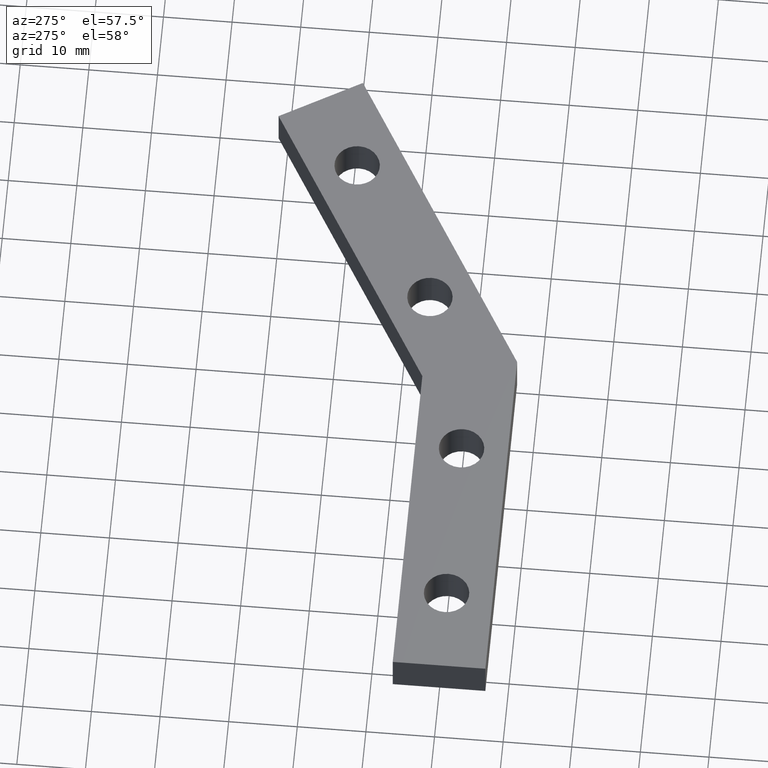
[diagram: clean part render]
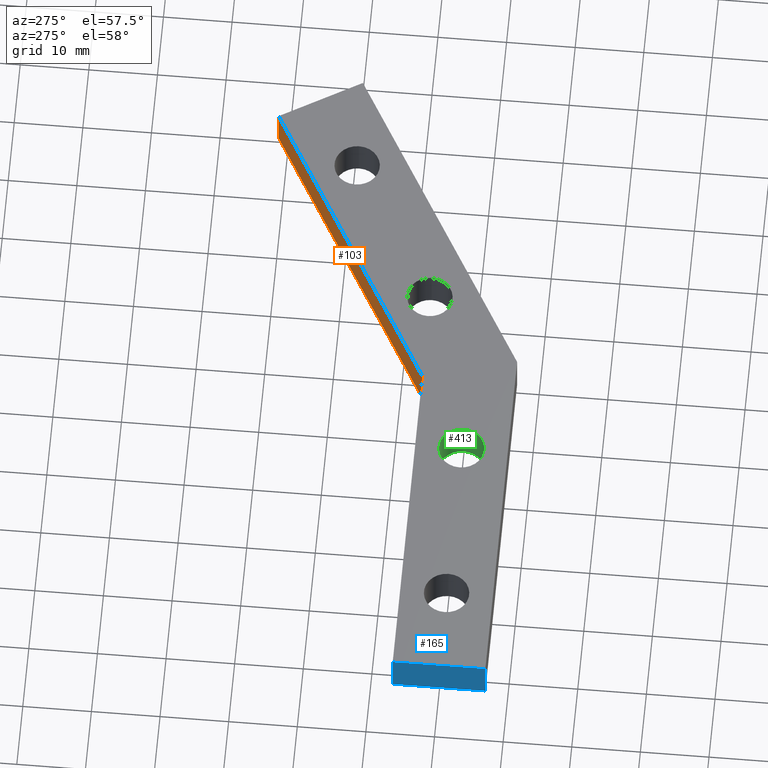
[diagram: same view with three faces highlighted in distinct colors, each labeled with its STEP entity id]
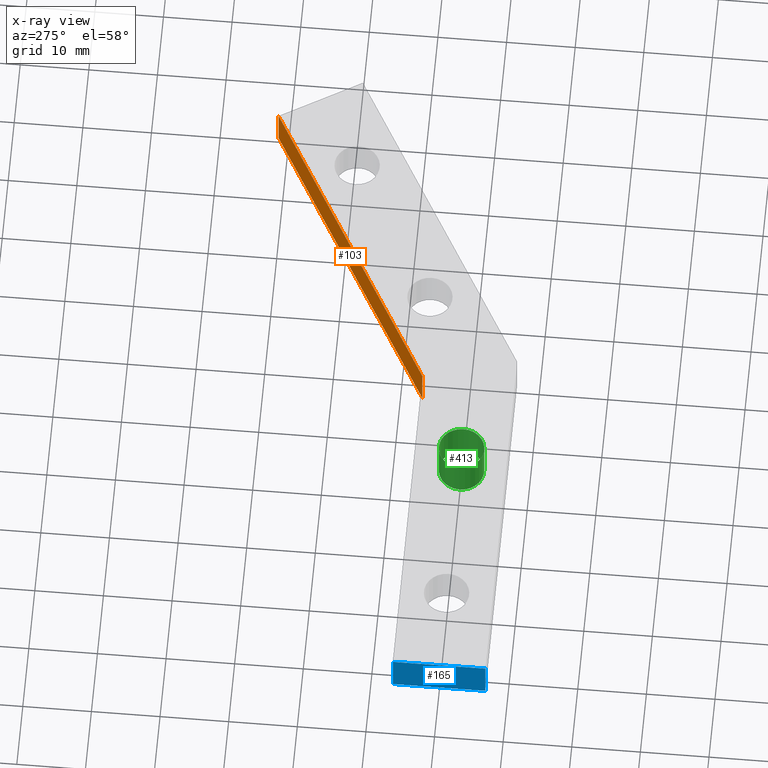
[diagram: x-ray of the same camera — body ghosted, the three highlighted faces saturated]
A machine part, auxiliary view with three faces highlighted in distinct colors.
The next image is the same camera in x-ray (body ghosted, the three faces saturated) — at least one of them is partly hidden behind the body in this view.
Their STEP definitions:

[orange] entity #103 — the highlighted planar face has unit normal (0.5, -0.866, 0).
#48=CARTESIAN_POINT('',(79.649374999681640,31.441342999874450,0.0));
#49=VERTEX_POINT('',#48);
#56=CARTESIAN_POINT('',(79.649374999681640,31.441342999874450,6.0));
#57=VERTEX_POINT('',#56);
#58=CARTESIAN_POINT('',(79.649374999681640,31.441342999874450,6.0));
#59=DIRECTION('',(0.0,0.0,-1.0));
#60=VECTOR('',#59,6.0);
#61=LINE('',#58,#60);
#62=EDGE_CURVE('',#57,#49,#61,.T.);
#73=CARTESIAN_POINT('',(79.649374999681640,31.441342999874450,6.0));
#74=DIRECTION('',(0.500000005113007,-0.866025400832443,0.0));
#75=DIRECTION('',(-0.866025400832443,-0.500000005113007,0.0));
#76=AXIS2_PLACEMENT_3D('',#73,#74,#75);
#77=PLANE('',#76);
#78=ORIENTED_EDGE('',*,*,#62,.T.);
#79=CARTESIAN_POINT('',(36.882714999852396,6.749999999973170,0.0));
#80=VERTEX_POINT('',#79);
#81=CARTESIAN_POINT('',(79.649374999681342,31.441342999874450,0.0));
#82=DIRECTION('',(-0.866025400832441,-0.500000005113009,0.0));
#83=VECTOR('',#82,49.382685494814304);
#84=LINE('',#81,#83);
#85=EDGE_CURVE('',#49,#80,#84,.T.);
#86=ORIENTED_EDGE('',*,*,#85,.T.);
#87=CARTESIAN_POINT('',(36.882714999852396,6.749999999973170,6.0));
#88=VERTEX_POINT('',#87);
#89=CARTESIAN_POINT('',(36.882714999852396,6.749999999973170,6.0));
#90=DIRECTION('',(0.0,0.0,-1.0));
#91=VECTOR('',#90,6.0);
#92=LINE('',#89,#91);
#93=EDGE_CURVE('',#88,#80,#92,.T.);
#94=ORIENTED_EDGE('',*,*,#93,.F.);
#95=CARTESIAN_POINT('',(79.649374999681342,31.441342999874450,6.0));
#96=DIRECTION('',(-0.866025400832441,-0.500000005113009,0.0));
#97=VECTOR('',#96,49.382685494814304);
#98=LINE('',#95,#97);
#99=EDGE_CURVE('',#57,#88,#98,.T.);
#100=ORIENTED_EDGE('',*,*,#99,.F.);
#101=EDGE_LOOP('',(#78,#86,#94,#100));
#102=FACE_OUTER_BOUND('',#101,.T.);
#103=ADVANCED_FACE('',(#102),#77,.F.);

[blue] entity #165 — the highlighted planar face has unit normal (1, 0, 0).
#110=CARTESIAN_POINT('',(-12.499999999949978,6.749999999973170,0.0));
#111=VERTEX_POINT('',#110);
#118=CARTESIAN_POINT('',(-12.499999999949978,6.749999999973170,6.0));
#119=VERTEX_POINT('',#118);
#120=CARTESIAN_POINT('',(-12.499999999949978,6.749999999973170,6.0));
#121=DIRECTION('',(0.0,0.0,-1.0));
#122=VECTOR('',#121,6.0);
#123=LINE('',#120,#122);
#124=EDGE_CURVE('',#119,#111,#123,.T.);
#135=CARTESIAN_POINT('',(-12.499999999949978,6.749999999973170,6.0));
#136=DIRECTION('',(1.0,0.0,0.0));
#137=DIRECTION('',(0.0,-1.0,0.0));
#138=AXIS2_PLACEMENT_3D('',#135,#136,#137);
#139=PLANE('',#138);
#140=ORIENTED_EDGE('',*,*,#124,.T.);
#141=CARTESIAN_POINT('',(-12.499999999949978,-6.749999999972943,0.0));
#142=VERTEX_POINT('',#141);
#143=CARTESIAN_POINT('',(-12.499999999949978,6.749999999973170,0.0));
#144=DIRECTION('',(0.0,-1.0,0.0));
#145=VECTOR('',#144,13.499999999945988);
#146=LINE('',#143,#145);
#147=EDGE_CURVE('',#111,#142,#146,.T.);
#148=ORIENTED_EDGE('',*,*,#147,.T.);
#149=CARTESIAN_POINT('',(-12.499999999949978,-6.749999999972943,6.0));
#150=VERTEX_POINT('',#149);
#151=CARTESIAN_POINT('',(-12.499999999949978,-6.749999999972943,6.0));
#152=DIRECTION('',(0.0,0.0,-1.0));
#153=VECTOR('',#152,6.0);
#154=LINE('',#151,#153);
#155=EDGE_CURVE('',#150,#142,#154,.T.);
#156=ORIENTED_EDGE('',*,*,#155,.F.);
#157=CARTESIAN_POINT('',(-12.499999999949978,6.749999999973170,6.0));
#158=DIRECTION('',(0.0,-1.0,0.0));
#159=VECTOR('',#158,13.499999999945988);
#160=LINE('',#157,#159);
#161=EDGE_CURVE('',#119,#150,#160,.T.);
#162=ORIENTED_EDGE('',*,*,#161,.F.);
#163=EDGE_LOOP('',(#140,#148,#156,#162));
#164=FACE_OUTER_BOUND('',#163,.T.);
#165=ADVANCED_FACE('',(#164),#139,.F.);

[green] entity #413 — the highlighted cylindrical surface (bore or boss wall) has radius 3.3 mm, axis along (0, 0, 1).
#221=CARTESIAN_POINT('',(21.699999999899955,0.0,6.0));
#222=VERTEX_POINT('',#221);
#223=CARTESIAN_POINT('',(28.299999999900137,0.0,6.0));
#224=VERTEX_POINT('',#223);
#225=CARTESIAN_POINT('',(24.999999999899956,0.0,6.0));
#226=DIRECTION('',(0.0,0.0,1.0));
#227=DIRECTION('',(1.0,0.0,0.0));
#228=AXIS2_PLACEMENT_3D('',#225,#226,#227);
#229=CIRCLE('',#228,3.300000000000000);
#230=EDGE_CURVE('',#222,#224,#229,.T.);
#232=CARTESIAN_POINT('',(24.999999999899956,0.0,6.0));
#233=DIRECTION('',(0.0,0.0,1.0));
#234=DIRECTION('',(1.0,0.0,0.0));
#235=AXIS2_PLACEMENT_3D('',#232,#233,#234);
#236=CIRCLE('',#235,3.300000000000000);
#237=EDGE_CURVE('',#224,#222,#236,.T.);
#315=CARTESIAN_POINT('',(21.699999999899955,0.0,0.0));
#316=VERTEX_POINT('',#315);
#317=CARTESIAN_POINT('',(28.299999999900137,0.0,0.0));
#318=VERTEX_POINT('',#317);
#319=CARTESIAN_POINT('',(24.999999999899956,0.0,0.0));
#320=DIRECTION('',(0.0,0.0,-1.0));
#321=DIRECTION('',(1.0,0.0,0.0));
#322=AXIS2_PLACEMENT_3D('',#319,#320,#321);
#323=CIRCLE('',#322,3.300000000000000);
#324=EDGE_CURVE('',#316,#318,#323,.T.);
#326=CARTESIAN_POINT('',(24.999999999899956,0.0,0.0));
#327=DIRECTION('',(0.0,0.0,-1.0));
#328=DIRECTION('',(1.0,0.0,0.0));
#329=AXIS2_PLACEMENT_3D('',#326,#327,#328);
#330=CIRCLE('',#329,3.300000000000000);
#331=EDGE_CURVE('',#318,#316,#330,.T.);
#395=CARTESIAN_POINT('',(24.999999999899956,0.0,6.0));
#396=DIRECTION('',(0.0,0.0,1.0));
#397=DIRECTION('',(1.0,0.0,0.0));
#398=AXIS2_PLACEMENT_3D('',#395,#396,#397);
#399=CYLINDRICAL_SURFACE('',#398,3.300000000000000);
#400=CARTESIAN_POINT('',(28.299999999900137,0.0,6.0));
#401=DIRECTION('',(0.0,0.0,-1.0));
#402=VECTOR('',#401,6.0);
#403=LINE('',#400,#402);
#404=EDGE_CURVE('',#224,#318,#403,.T.);
#405=ORIENTED_EDGE('',*,*,#404,.T.);
#406=ORIENTED_EDGE('',*,*,#331,.T.);
#407=ORIENTED_EDGE('',*,*,#324,.T.);
#408=ORIENTED_EDGE('',*,*,#404,.F.);
#409=ORIENTED_EDGE('',*,*,#237,.T.);
#410=ORIENTED_EDGE('',*,*,#230,.T.);
#411=EDGE_LOOP('',(#405,#406,#407,#408,#409,#410));
#412=FACE_OUTER_BOUND('',#411,.T.);
#413=ADVANCED_FACE('',(#412),#399,.F.);